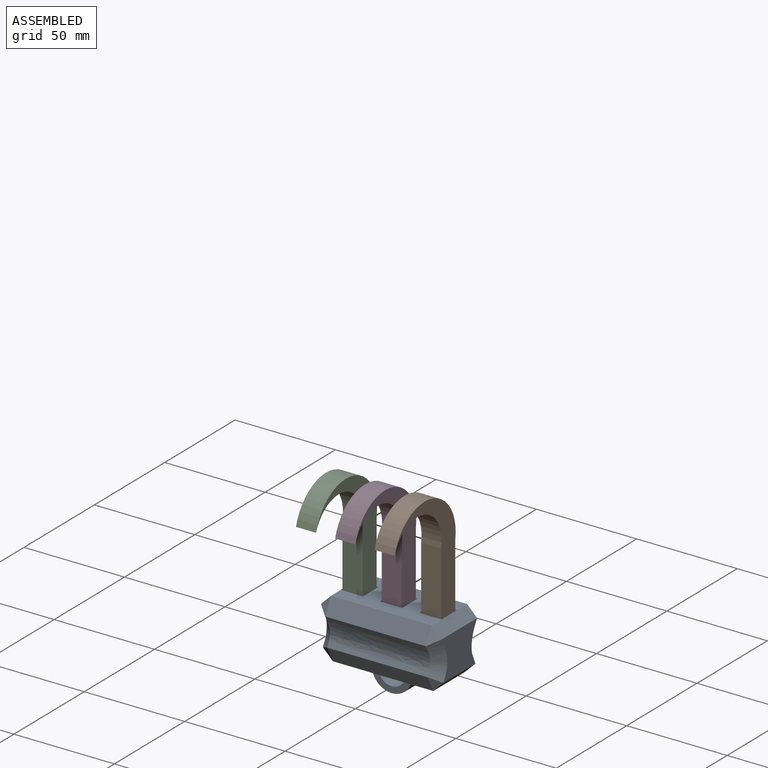
[diagram: assembled view]
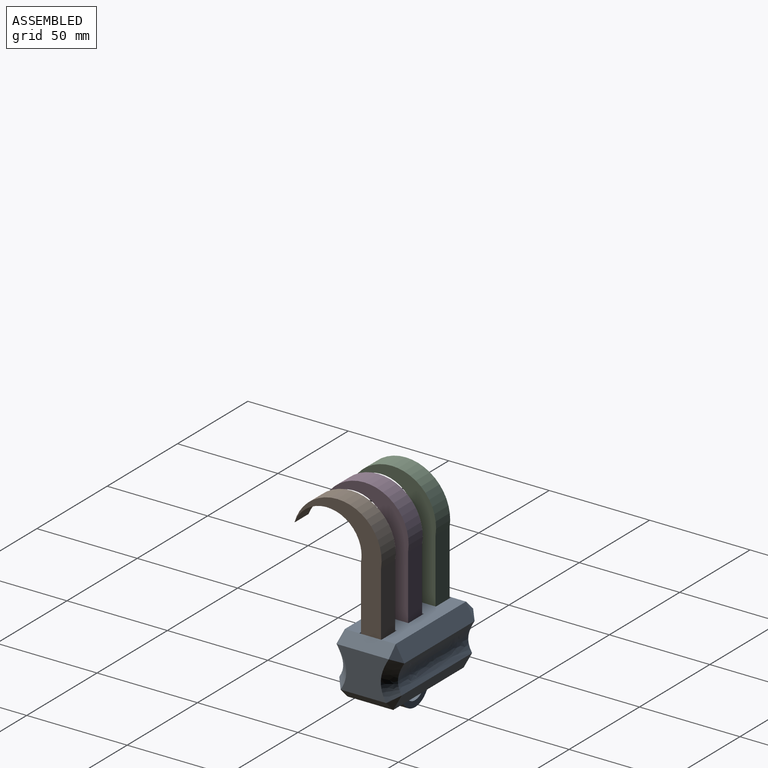
[diagram: assembled view, second angle]
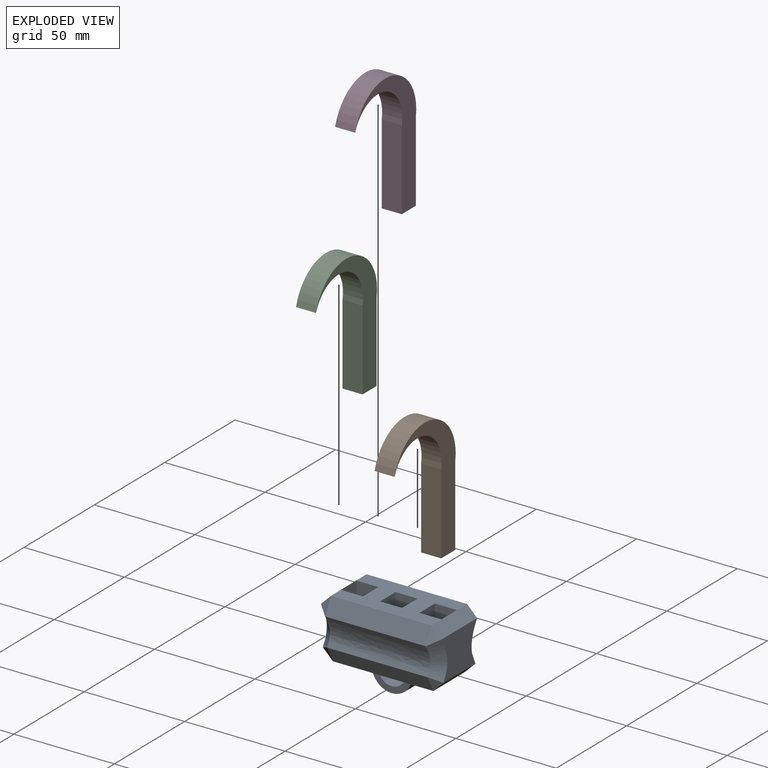
[diagram: exploded view]
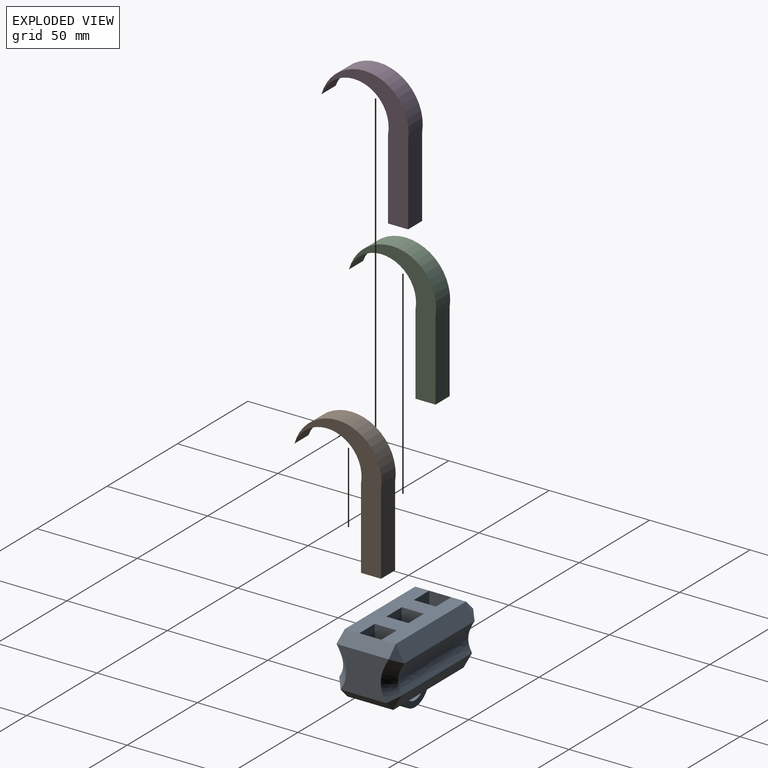
[diagram: exploded view, second angle]
ASSEMBLY  parts=4 mates=3
PART A: 45 faces, bbox 60.3x35.2x40.3 mm
  f0: plane 25.61x20.29mm, normal (1,0,0), area 392.6mm2, adj f9,f10,f19,f20
  f1: plane 25.61x20.29mm, normal (-1,0,0), area 392.6mm2, adj f12,f13,f21,f22
  f2: plane 50x25.32mm, normal (0,0,1), area 903mm2, adj f6,f9,f13,f14,f31,f32,f33,f35
  f3: plane 50x22.72mm, normal (0,0,-1), area 1073.8mm2, adj f11,f20,f21,f25,f26,f27,f28,f29
  f4: extruded ~50x14.72mm, area 789.4mm2, adj f6,f10,f11,f12
  f5: extruded ~50x14.51mm, area 783.7mm2, adj f14,f19,f22,f25
  f6: plane 50x7.62mm, normal (0,0.87,0.49), area 436.4mm2, adj f2,f4,f7,f8
  f7: plane 7.62x5mm, normal (0.44,0.78,0.44), area 24.3mm2, adj f6,f9,f10
  f8: plane 7.62x5mm, normal (-0.44,0.78,0.44), area 24.3mm2, adj f6,f12,f13
  f9: plane 25.32x5mm, normal (0.71,0,0.71), area 179mm2, adj f0,f2,f7,f15,f30
  f10: bspline ~21.79x8.83mm, area 131.3mm2, adj f0,f4,f7,f16
  f11: plane 50x7.66mm, normal (0,0.88,-0.48), area 437.5mm2, adj f3,f4,f16,f17
  f12: bspline ~21.79x8.87mm, area 131.3mm2, adj f1,f4,f8,f17
  f13: plane 25.32x5mm, normal (-0.71,0,0.71), area 179mm2, adj f1,f2,f8,f18,f40
  f14: plane 50x7.73mm, normal (0,-0.88,0.48), area 439.7mm2, adj f2,f5,f15,f18
  f15: plane 7.73x5mm, normal (0.43,-0.79,0.43), area 24.3mm2, adj f9,f14,f19
  f16: plane 7.66x5mm, normal (0.44,0.79,-0.44), area 24.3mm2, adj f10,f11,f20
  f17: plane 7.66x5mm, normal (-0.44,0.79,-0.44), area 24.3mm2, adj f11,f12,f21
  f18: plane 7.73x5mm, normal (-0.43,-0.79,0.43), area 24.3mm2, adj f13,f14,f22
  f19: bspline ~20x8.35mm, area 131.4mm2, adj f0,f5,f15,f23
  f20: plane 22.72x5mm, normal (0.71,0,-0.71), area 160.6mm2, adj f0,f3,f16,f23
  f21: plane 22.72x5mm, normal (-0.71,0,-0.71), area 160.6mm2, adj f1,f3,f17,f24
  f22: bspline ~21.78x8.93mm, area 131.4mm2, adj f1,f5,f18,f24
  f23: plane 7.76x5mm, normal (0.43,-0.8,-0.43), area 24.4mm2, adj f19,f20,f25
  f24: plane 7.76x5mm, normal (-0.43,-0.8,-0.43), area 24.4mm2, adj f21,f22,f25
  f25: plane 50x7.76mm, normal (0,-0.88,-0.47), area 440.3mm2, adj f3,f5,f23,f24
  f26: plane 20x10mm, normal (0,-1,0), area 82.3mm2, adj f3,f27,f29
  f27: cylinder r=10mm len=20mm, axis (0,-1,0), area 314.2mm2, adj f3,f26,f28
  f28: plane 20x10mm, normal (0,1,0), area 82.3mm2, adj f3,f27,f29
  f29: cylinder r=6.9mm len=13.8mm, axis (0,-1,0), area 216.8mm2, adj f3,f26,f28
  f30: plane 11x8.38mm, normal (-1,0,0), area 92.2mm2, adj f9,f31,f33,f34
  f31: plane 11x8.38mm, normal (0,-1,0), area 92.2mm2, adj f2,f30,f32,f34
  f32: plane 11x8.38mm, normal (1,0,0), area 92.2mm2, adj f2,f31,f33,f34
  f33: plane 11x8.38mm, normal (0,1,0), area 92.2mm2, adj f2,f30,f32,f34
  f34: plane 11x11mm, normal (0,0,1), area 121mm2, adj f30,f31,f32,f33
  f35: plane 11x8.38mm, normal (1,0,0), area 92.2mm2, adj f2,f36,f38,f39
  f36: plane 11x8.38mm, normal (0,1,0), area 92.2mm2, adj f2,f35,f37,f39
  f37: plane 11x8.38mm, normal (-1,0,0), area 92.2mm2, adj f2,f36,f38,f39
  f38: plane 11x8.38mm, normal (0,-1,0), area 92.2mm2, adj f2,f35,f37,f39
  f39: plane 11x11mm, normal (0,0,1), area 121mm2, adj f35,f36,f37,f38
  f40: plane 11x8.38mm, normal (1,0,0), area 92.2mm2, adj f13,f41,f43,f44
  f41: plane 11x8.38mm, normal (0,1,0), area 92.2mm2, adj f2,f40,f42,f44
  f42: plane 11x8.38mm, normal (-1,0,0), area 92.2mm2, adj f2,f41,f43,f44
  f43: plane 11x8.38mm, normal (0,-1,0), area 92.2mm2, adj f2,f40,f42,f44
  f44: plane 11x11mm, normal (0,0,1), area 121mm2, adj f40,f41,f42,f43
PART B: 7 faces, bbox 10x43.4x65.6 mm
  f0: cylinder r=22.08mm len=43.38mm, axis (1,0,0), area 669.9mm2, adj f1,f2,f5,f6
  f1: cylinder r=17.25mm len=33.42mm, axis (1,0,0), area 513mm2, adj f0,f3,f5,f6
  f2: plane 40x10mm, normal (0,1,0), area 400mm2, adj f0,f4,f5,f6
  f3: plane 40x10mm, normal (0,-1,0), area 400mm2, adj f1,f4,f5,f6
  f4: plane 10x10mm, normal (0,0,-1), area 100mm2, adj f2,f3,f5,f6
  f5: plane 65.56x43.38mm, normal (1,0,0), area 742.2mm2, adj f0,f1,f2,f3,f4
  f6: plane 65.56x43.38mm, normal (-1,0,0), area 742.2mm2, adj f0,f1,f2,f3,f4
PART C: same geometry as B
PART D: same geometry as B
PLACE A rot(axis=(0.41,0.66,0.63),0deg) t=(-44.15,-27.54,-12.75)mm
PLACE B rot(axis=(0.41,0.66,0.63),0deg) t=(-25.85,-28.9,8.87)mm
PLACE C rot(axis=(0.41,0.66,0.63),0deg) t=(-64.85,-29.09,8.87)mm
PLACE D rot(axis=(0.41,0.66,0.63),0deg) t=(-45.35,-29.09,8.87)mm
MATE fastened C.f4 <-> A.f44  axis (0,0,-1) through (-63.65,-27.54,8.87)mm
MATE fastened B.f4 <-> A.f34  axis (0,0,-1) through (-24.65,-27.36,8.87)mm
MATE fastened D.f4 <-> A.f39  axis (0,0,-1) through (-44.15,-27.54,8.87)mm
